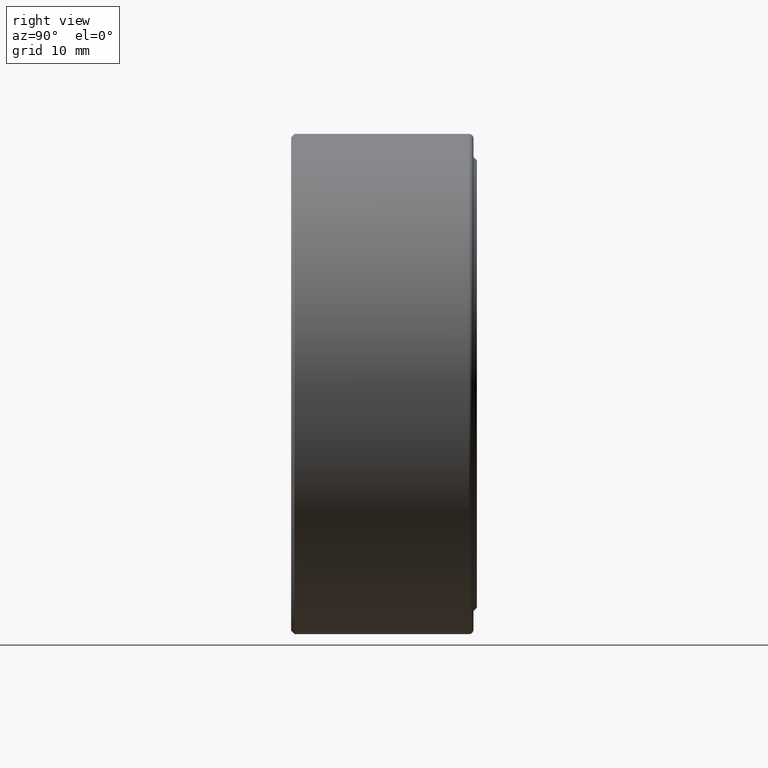
[diagram: clean part render]
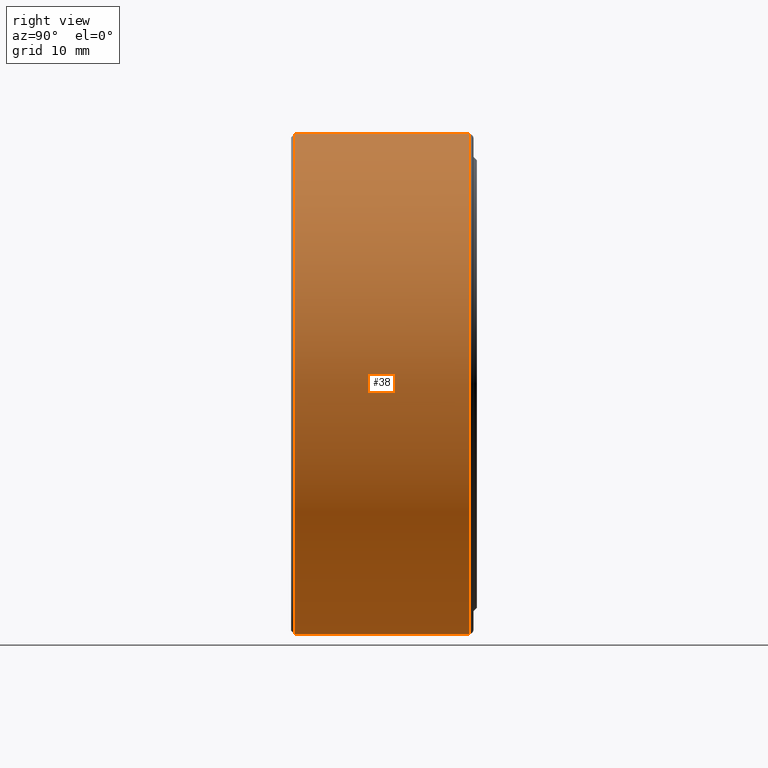
[diagram: same view with one face highlighted and labeled with its STEP entity id]
A machine part, right view. The second image highlights one B-rep face of the part: STEP entity #38.
In plain terms, the highlighted cylindrical surface (bore or boss wall) has radius 27.7812 mm, axis along (-0, 1, -0).
Its self-contained STEP definition (entity closure, byte-faithful):
#5 = EDGE_LOOP ( 'NONE', ( #522 ) ) ;
#8 = VERTEX_POINT ( 'NONE', #521 ) ;
#16 = FACE_OUTER_BOUND ( 'NONE', #165, .T. ) ;
#38 = ADVANCED_FACE ( 'NONE', ( #405, #16 ), #219, .T. ) ;
#63 = EDGE_CURVE ( 'NONE', #261, #261, #105, .T. ) ;
#105 = CIRCLE ( 'NONE', #534, 1.093750000000000000 ) ;
#123 = AXIS2_PLACEMENT_3D ( 'NONE', #597, #518, #292 ) ;
#149 = CARTESIAN_POINT ( 'NONE',  ( 0.0000000000000000000, 0.01500000000000004500, 1.093750000000000000 ) ) ;
#152 = AXIS2_PLACEMENT_3D ( 'NONE', #412, #416, #179 ) ;
#165 = EDGE_LOOP ( 'NONE', ( #565 ) ) ;
#179 = DIRECTION ( 'NONE',  ( 0.0000000000000000000, 0.0000000000000000000, 1.000000000000000000 ) ) ;
#219 = CYLINDRICAL_SURFACE ( 'NONE', #152, 1.093750000000000000 ) ;
#261 = VERTEX_POINT ( 'NONE', #149 ) ;
#292 = DIRECTION ( 'NONE',  ( 0.0000000000000000000, 0.0000000000000000000, 1.000000000000000000 ) ) ;
#303 = CIRCLE ( 'NONE', #123, 1.093750000000000000 ) ;
#337 = CARTESIAN_POINT ( 'NONE',  ( 0.0000000000000000000, 0.01500000000000004500, 0.0000000000000000000 ) ) ;
#382 = DIRECTION ( 'NONE',  ( 0.0000000000000000000, 0.0000000000000000000, 1.000000000000000000 ) ) ;
#405 = FACE_OUTER_BOUND ( 'NONE', #5, .T. ) ;
#412 = CARTESIAN_POINT ( 'NONE',  ( 0.0000000000000000000, 0.0000000000000000000, 0.0000000000000000000 ) ) ;
#416 = DIRECTION ( 'NONE',  ( -0.0000000000000000000, 1.000000000000000000, -0.0000000000000000000 ) ) ;
#516 = DIRECTION ( 'NONE',  ( -0.0000000000000000000, 1.000000000000000000, -0.0000000000000000000 ) ) ;
#518 = DIRECTION ( 'NONE',  ( -0.0000000000000000000, 1.000000000000000000, -0.0000000000000000000 ) ) ;
#521 = CARTESIAN_POINT ( 'NONE',  ( 0.0000000000000000000, 0.7774999999999999700, 1.093750000000000000 ) ) ;
#522 = ORIENTED_EDGE ( 'NONE', *, *, #581, .F. ) ;
#534 = AXIS2_PLACEMENT_3D ( 'NONE', #337, #516, #382 ) ;
#565 = ORIENTED_EDGE ( 'NONE', *, *, #63, .T. ) ;
#581 = EDGE_CURVE ( 'NONE', #8, #8, #303, .T. ) ;
#597 = CARTESIAN_POINT ( 'NONE',  ( 0.0000000000000000000, 0.7774999999999999700, 0.0000000000000000000 ) ) ;